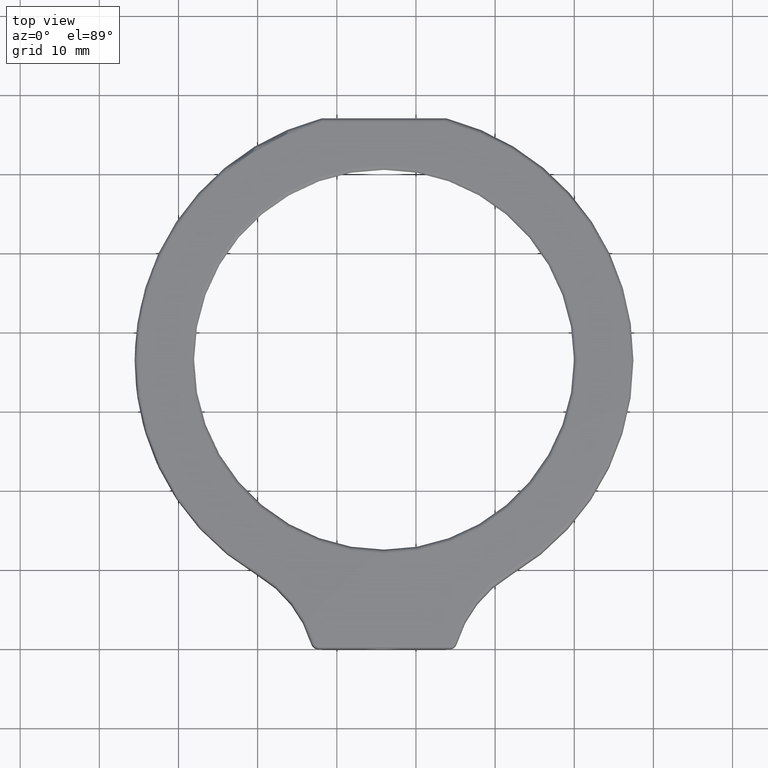
[diagram: clean part render]
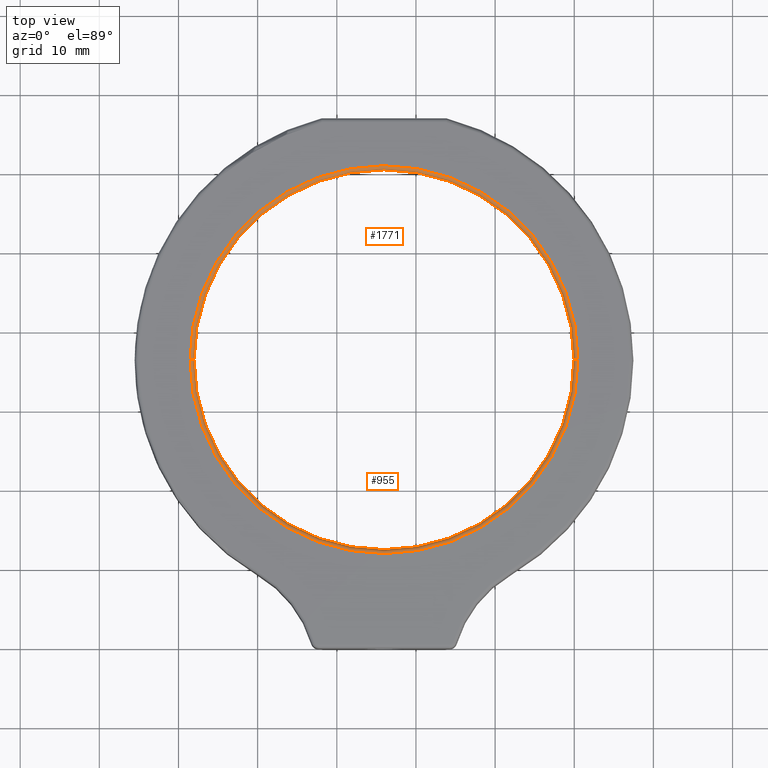
[diagram: same view with one multi-face feature highlighted, each face labeled with its STEP entity id]
A machine part, top view. The highlighted faces form ONE feature: a constant-radius fillet chain: 2 tangent blend faces with common blend radius 0.5 mm. The faces share edges in the B-rep.
Their STEP definitions:
[1] entity #955 (Torus):
#220 = ORIENTED_EDGE ( 'NONE', *, *, #1695, .F. ) ;
#233 = VERTEX_POINT ( 'NONE', #2079 ) ;
#374 = CIRCLE ( 'NONE', #589, 0.5000000000000004400 ) ;
#384 = CARTESIAN_POINT ( 'NONE',  ( 15.96392232975974000, 6.458849838114653100, 9.000000000007276000 ) ) ;
#423 = VERTEX_POINT ( 'NONE', #2576 ) ;
#439 = CARTESIAN_POINT ( 'NONE',  ( 40.46392232975974700, 6.458849838114653100, 8.500000000007276000 ) ) ;
#471 = DIRECTION ( 'NONE',  ( -0.0000000000000000000, 0.0000000000000000000, 1.000000000000000000 ) ) ;
#474 = DIRECTION ( 'NONE',  ( 0.0000000000000000000, 0.0000000000000000000, -1.000000000000000000 ) ) ;
#562 = CARTESIAN_POINT ( 'NONE',  ( 39.96392232975974700, 6.458849838114655700, 8.500000000007276000 ) ) ;
#589 = AXIS2_PLACEMENT_3D ( 'NONE', #439, #924, #474 ) ;
#604 = AXIS2_PLACEMENT_3D ( 'NONE', #2027, #766, #2244 ) ;
#766 = DIRECTION ( 'NONE',  ( -0.0000000000000000000, 0.0000000000000000000, 1.000000000000000000 ) ) ;
#856 = CIRCLE ( 'NONE', #1731, 0.5000000000000004400 ) ;
#883 = EDGE_LOOP ( 'NONE', ( #2623, #2691, #2331, #220 ) ) ;
#924 = DIRECTION ( 'NONE',  ( 0.0000000000000000000, -1.000000000000000000, 0.0000000000000000000 ) ) ;
#955 = ADVANCED_FACE ( 'NONE', ( #2762 ), #2148, .T. ) ;
#1015 = DIRECTION ( 'NONE',  ( 1.000000000000000000, 0.0000000000000000000, 0.0000000000000000000 ) ) ;
#1070 = CARTESIAN_POINT ( 'NONE',  ( -8.536077670240265600, 6.458849838114655700, 8.500000000007276000 ) ) ;
#1110 = VERTEX_POINT ( 'NONE', #562 ) ;
#1557 = CIRCLE ( 'NONE', #604, 24.00000000000000700 ) ;
#1570 = DIRECTION ( 'NONE',  ( 1.000000000000000000, 0.0000000000000000000, 0.0000000000000000000 ) ) ;
#1695 = EDGE_CURVE ( 'NONE', #423, #1110, #1557, .T. ) ;
#1731 = AXIS2_PLACEMENT_3D ( 'NONE', #1070, #2357, #1930 ) ;
#1747 = EDGE_CURVE ( 'NONE', #2514, #233, #1755, .T. ) ;
#1755 = CIRCLE ( 'NONE', #2708, 24.50000000000000700 ) ;
#1756 = CARTESIAN_POINT ( 'NONE',  ( 15.96392232975974000, 6.458849838114653100, 8.500000000007276000 ) ) ;
#1930 = DIRECTION ( 'NONE',  ( -1.000000000000000000, 0.0000000000000000000, 0.0000000000000000000 ) ) ;
#1960 = EDGE_CURVE ( 'NONE', #2514, #1110, #374, .T. ) ;
#2027 = CARTESIAN_POINT ( 'NONE',  ( 15.96392232975974000, 6.458849838114653100, 8.500000000007276000 ) ) ;
#2079 = CARTESIAN_POINT ( 'NONE',  ( -8.536077670240265600, 6.458849838114655700, 9.000000000007276000 ) ) ;
#2148 = TOROIDAL_SURFACE ( 'NONE', #2763, 24.50000000000000400, 0.5000000000000000000 ) ;
#2244 = DIRECTION ( 'NONE',  ( 1.000000000000000000, 0.0000000000000000000, 0.0000000000000000000 ) ) ;
#2331 = ORIENTED_EDGE ( 'NONE', *, *, #1960, .T. ) ;
#2357 = DIRECTION ( 'NONE',  ( 1.224646799147353200E-016, 1.000000000000000000, 0.0000000000000000000 ) ) ;
#2514 = VERTEX_POINT ( 'NONE', #2520 ) ;
#2520 = CARTESIAN_POINT ( 'NONE',  ( 40.46392232975974700, 6.458849838114653100, 9.000000000007276000 ) ) ;
#2576 = CARTESIAN_POINT ( 'NONE',  ( -8.036077670240265600, 6.458849838114653100, 8.500000000007276000 ) ) ;
#2623 = ORIENTED_EDGE ( 'NONE', *, *, #2637, .F. ) ;
#2637 = EDGE_CURVE ( 'NONE', #233, #423, #856, .T. ) ;
#2691 = ORIENTED_EDGE ( 'NONE', *, *, #1747, .F. ) ;
#2708 = AXIS2_PLACEMENT_3D ( 'NONE', #384, #2743, #1015 ) ;
#2743 = DIRECTION ( 'NONE',  ( 0.0000000000000000000, -0.0000000000000000000, -1.000000000000000000 ) ) ;
#2762 = FACE_OUTER_BOUND ( 'NONE', #883, .T. ) ;
#2763 = AXIS2_PLACEMENT_3D ( 'NONE', #1756, #471, #1570 ) ;
[2] entity #1771 (Torus):
#54 = AXIS2_PLACEMENT_3D ( 'NONE', #1454, #815, #182 ) ;
#182 = DIRECTION ( 'NONE',  ( 1.000000000000000000, 0.0000000000000000000, 0.0000000000000000000 ) ) ;
#192 = DIRECTION ( 'NONE',  ( 1.000000000000000000, 0.0000000000000000000, 0.0000000000000000000 ) ) ;
#204 = TOROIDAL_SURFACE ( 'NONE', #54, 24.50000000000000400, 0.5000000000000000000 ) ;
#233 = VERTEX_POINT ( 'NONE', #2079 ) ;
#315 = EDGE_CURVE ( 'NONE', #233, #2514, #661, .T. ) ;
#325 = AXIS2_PLACEMENT_3D ( 'NONE', #1239, #1663, #2070 ) ;
#371 = DIRECTION ( 'NONE',  ( 0.0000000000000000000, -0.0000000000000000000, -1.000000000000000000 ) ) ;
#374 = CIRCLE ( 'NONE', #589, 0.5000000000000004400 ) ;
#423 = VERTEX_POINT ( 'NONE', #2576 ) ;
#439 = CARTESIAN_POINT ( 'NONE',  ( 40.46392232975974700, 6.458849838114653100, 8.500000000007276000 ) ) ;
#474 = DIRECTION ( 'NONE',  ( 0.0000000000000000000, 0.0000000000000000000, -1.000000000000000000 ) ) ;
#562 = CARTESIAN_POINT ( 'NONE',  ( 39.96392232975974700, 6.458849838114655700, 8.500000000007276000 ) ) ;
#589 = AXIS2_PLACEMENT_3D ( 'NONE', #439, #924, #474 ) ;
#661 = CIRCLE ( 'NONE', #1207, 24.50000000000000700 ) ;
#815 = DIRECTION ( 'NONE',  ( -0.0000000000000000000, 0.0000000000000000000, 1.000000000000000000 ) ) ;
#850 = ORIENTED_EDGE ( 'NONE', *, *, #315, .F. ) ;
#856 = CIRCLE ( 'NONE', #1731, 0.5000000000000004400 ) ;
#869 = ORIENTED_EDGE ( 'NONE', *, *, #1268, .F. ) ;
#924 = DIRECTION ( 'NONE',  ( 0.0000000000000000000, -1.000000000000000000, 0.0000000000000000000 ) ) ;
#1021 = FACE_OUTER_BOUND ( 'NONE', #1205, .T. ) ;
#1070 = CARTESIAN_POINT ( 'NONE',  ( -8.536077670240265600, 6.458849838114655700, 8.500000000007276000 ) ) ;
#1110 = VERTEX_POINT ( 'NONE', #562 ) ;
#1205 = EDGE_LOOP ( 'NONE', ( #850, #2542, #869, #1508 ) ) ;
#1207 = AXIS2_PLACEMENT_3D ( 'NONE', #1479, #371, #192 ) ;
#1239 = CARTESIAN_POINT ( 'NONE',  ( 15.96392232975974000, 6.458849838114653100, 8.500000000007276000 ) ) ;
#1268 = EDGE_CURVE ( 'NONE', #1110, #423, #2790, .T. ) ;
#1454 = CARTESIAN_POINT ( 'NONE',  ( 15.96392232975974000, 6.458849838114653100, 8.500000000007276000 ) ) ;
#1479 = CARTESIAN_POINT ( 'NONE',  ( 15.96392232975974000, 6.458849838114653100, 9.000000000007276000 ) ) ;
#1508 = ORIENTED_EDGE ( 'NONE', *, *, #1960, .F. ) ;
#1663 = DIRECTION ( 'NONE',  ( -0.0000000000000000000, 0.0000000000000000000, 1.000000000000000000 ) ) ;
#1731 = AXIS2_PLACEMENT_3D ( 'NONE', #1070, #2357, #1930 ) ;
#1771 = ADVANCED_FACE ( 'NONE', ( #1021 ), #204, .T. ) ;
#1930 = DIRECTION ( 'NONE',  ( -1.000000000000000000, 0.0000000000000000000, 0.0000000000000000000 ) ) ;
#1960 = EDGE_CURVE ( 'NONE', #2514, #1110, #374, .T. ) ;
#2070 = DIRECTION ( 'NONE',  ( 1.000000000000000000, 0.0000000000000000000, 0.0000000000000000000 ) ) ;
#2079 = CARTESIAN_POINT ( 'NONE',  ( -8.536077670240265600, 6.458849838114655700, 9.000000000007276000 ) ) ;
#2357 = DIRECTION ( 'NONE',  ( 1.224646799147353200E-016, 1.000000000000000000, 0.0000000000000000000 ) ) ;
#2514 = VERTEX_POINT ( 'NONE', #2520 ) ;
#2520 = CARTESIAN_POINT ( 'NONE',  ( 40.46392232975974700, 6.458849838114653100, 9.000000000007276000 ) ) ;
#2542 = ORIENTED_EDGE ( 'NONE', *, *, #2637, .T. ) ;
#2576 = CARTESIAN_POINT ( 'NONE',  ( -8.036077670240265600, 6.458849838114653100, 8.500000000007276000 ) ) ;
#2637 = EDGE_CURVE ( 'NONE', #233, #423, #856, .T. ) ;
#2790 = CIRCLE ( 'NONE', #325, 24.00000000000000700 ) ;